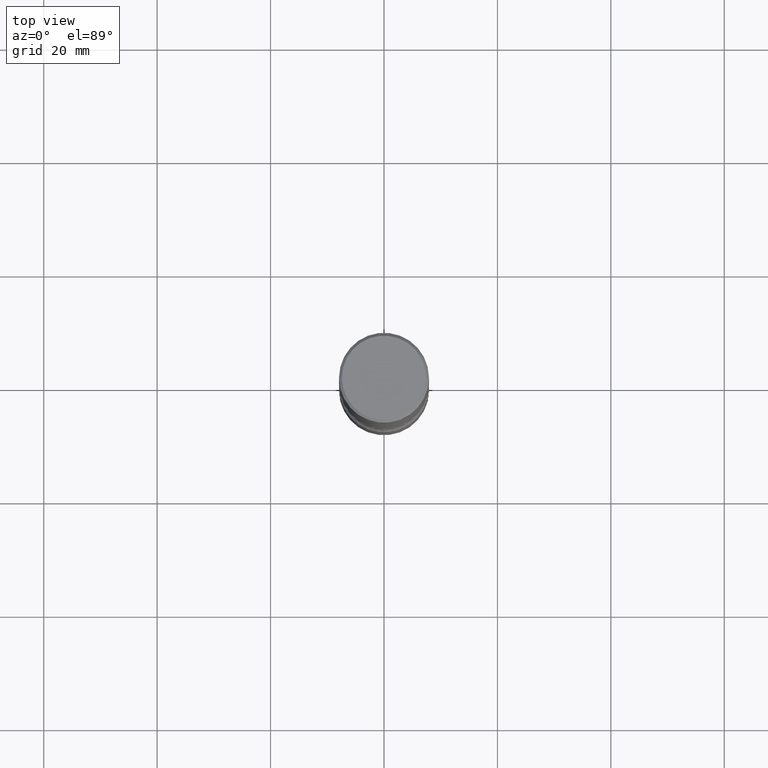
[diagram: clean part render]
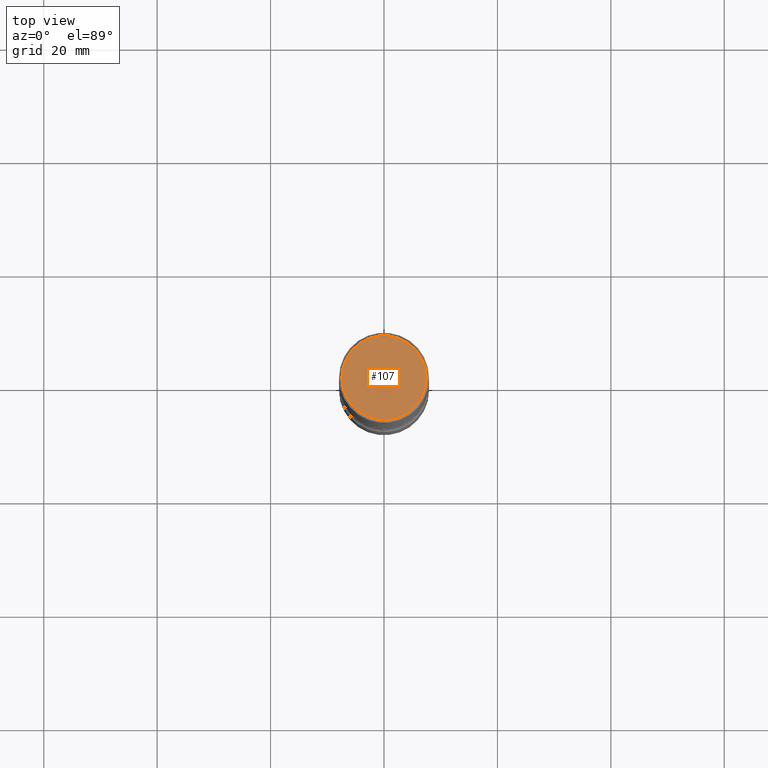
[diagram: same view with one face highlighted and labeled with its STEP entity id]
A machine part, top view. The second image highlights one B-rep face of the part: STEP entity #107.
In plain terms, the highlighted planar face has unit normal (0, -0, -1).
Its self-contained STEP definition (entity closure, byte-faithful):
#1 = AXIS2_PLACEMENT_3D ( 'NONE', #462, #86, #421 ) ;
#58 = VERTEX_POINT ( 'NONE', #498 ) ;
#86 = DIRECTION ( 'NONE',  ( 2.438088387897960049E-29, -3.491481338843145188E-15, -1.000000000000000000 ) ) ;
#107 = ADVANCED_FACE ( 'NONE', ( #508 ), #348, .F. ) ;
#130 = DIRECTION ( 'NONE',  ( 1.000000000000000000, -6.982962677686266711E-15, 4.876067333457692840E-29 ) ) ;
#160 = CIRCLE ( 'NONE', #320, 0.2924999999999998157 ) ;
#202 = EDGE_CURVE ( 'NONE', #58, #323, #160, .T. ) ;
#209 = DIRECTION ( 'NONE',  ( -2.445468806185136597E-29, 3.491481338843145583E-15, 1.000000000000000000 ) ) ;
#242 = CIRCLE ( 'NONE', #451, 0.2924999999999998157 ) ;
#248 = CARTESIAN_POINT ( 'NONE',  ( -1.043851414335219820E-46, 1.490343170380447200E-32, 4.268512490100411279E-18 ) ) ;
#260 = CARTESIAN_POINT ( 'NONE',  ( -0.2924999999999998157, 2.077431396611663005E-15, 4.268512490086005323E-18 ) ) ;
#266 = ORIENTED_EDGE ( 'NONE', *, *, #202, .T. ) ;
#320 = AXIS2_PLACEMENT_3D ( 'NONE', #248, #209, #484 ) ;
#323 = VERTEX_POINT ( 'NONE', #260 ) ;
#324 = EDGE_CURVE ( 'NONE', #323, #58, #242, .T. ) ;
#348 = PLANE ( 'NONE',  #1 ) ;
#362 = DIRECTION ( 'NONE',  ( -2.445468806185136597E-29, 3.491481338843145583E-15, 1.000000000000000000 ) ) ;
#421 = DIRECTION ( 'NONE',  ( -1.000000000000000000, 6.982962677686265922E-15, -4.876176775795935793E-29 ) ) ;
#430 = CARTESIAN_POINT ( 'NONE',  ( -1.043851414335219820E-46, 1.490343170380447200E-32, 4.268512490100411279E-18 ) ) ;
#451 = AXIS2_PLACEMENT_3D ( 'NONE', #430, #362, #130 ) ;
#462 = CARTESIAN_POINT ( 'NONE',  ( 2.042516583223231356E-15, 0.2924999999999998157, -1.019124035366569212E-15 ) ) ;
#481 = ORIENTED_EDGE ( 'NONE', *, *, #324, .T. ) ;
#484 = DIRECTION ( 'NONE',  ( 1.000000000000000000, -6.982962677686266711E-15, 4.876067333457692840E-29 ) ) ;
#498 = CARTESIAN_POINT ( 'NONE',  ( 0.2924999999999998157, -2.110215457714318748E-15, 4.268512490114932791E-18 ) ) ;
#508 = FACE_OUTER_BOUND ( 'NONE', #518, .T. ) ;
#518 = EDGE_LOOP ( 'NONE', ( #481, #266 ) ) ;